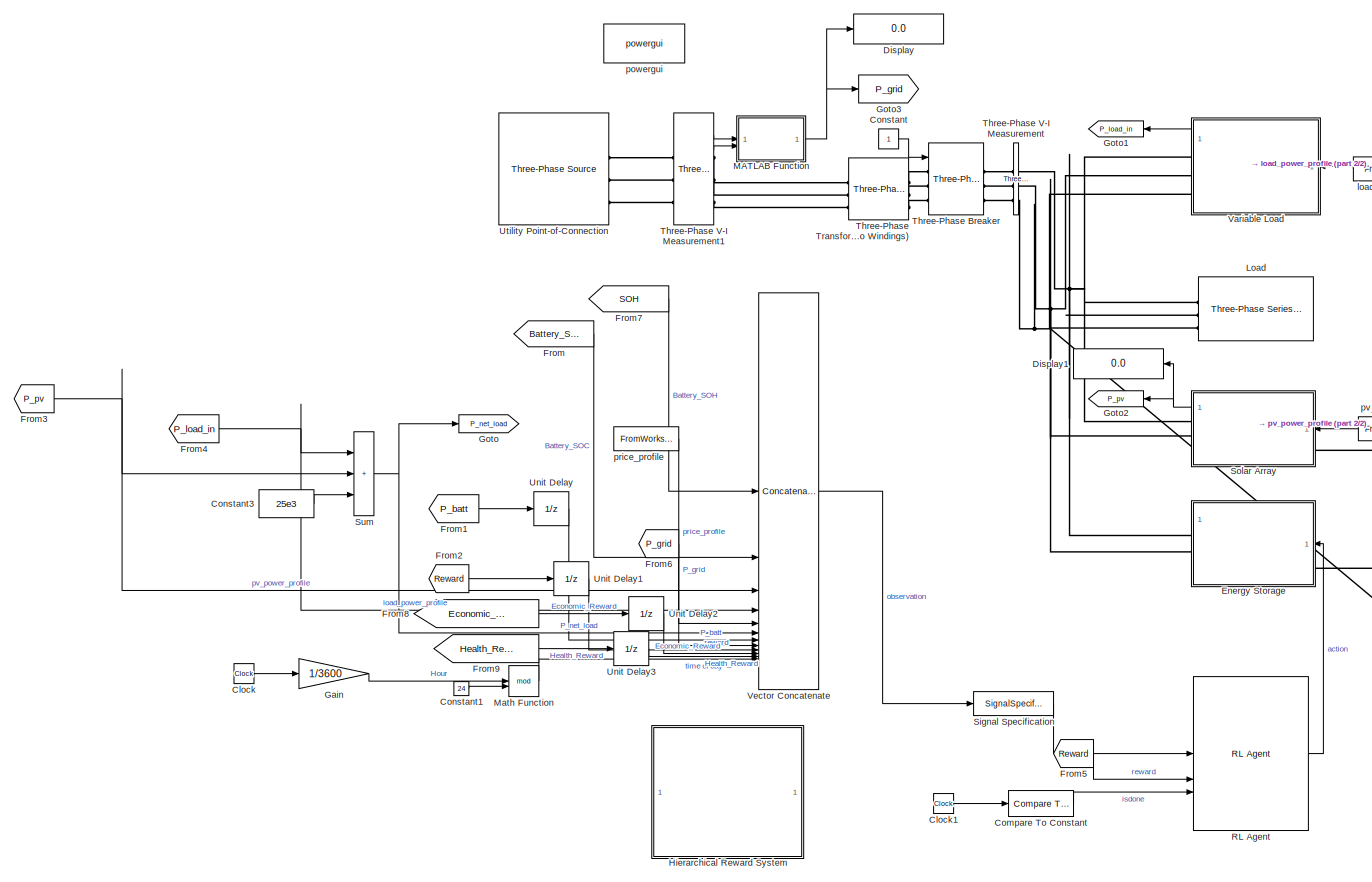
[diagram: root canvas - part 1/2, most of the canvas]
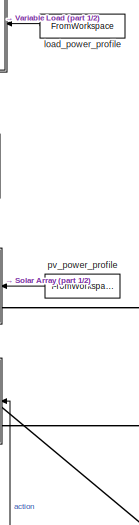
[diagram: root canvas - part 2/2, middle right region]
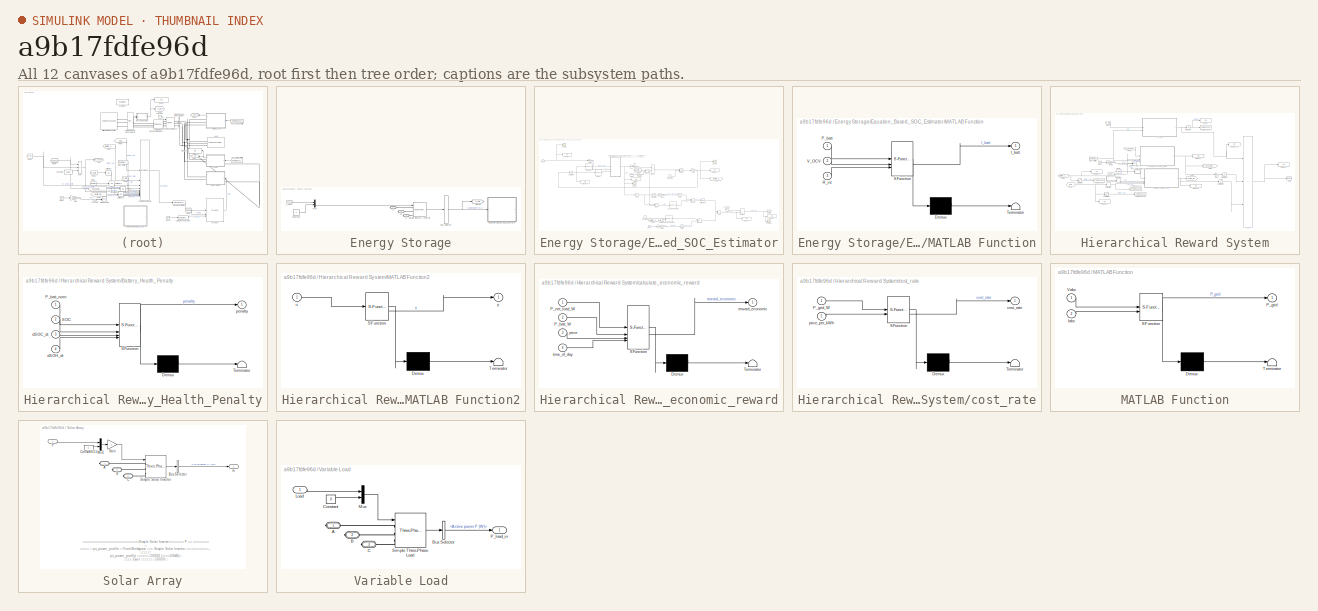
[diagram: thumbnail index - all 12 canvases of the model, root first then tree order]
MODEL slx_a9b17fdfe96d
KIND model
CONFIG AbsTol = 1e-6
CONFIG EnableMultiTasking = off
CONFIG FixedStep = 3600
CONFIG MaxStep = 900
CONFIG MinStep = 1e-4
CONFIG RelTol = 1e-4
CONFIG SampleTimeConstraint = Unconstrained
CONFIG SolverName = ode23tb
CONFIG StartFcn = fprintf('=== Starting Episode [%s] ===\n', datestr(now, 'HH:MM:SS'));
CONFIG StartTime = 0
CONFIG StopTime = 2592000
BLOCK [Clock] Clock
  DisplayTime = on
BLOCK [Clock] Clock1
BLOCK [Reference] Compare To Constant  REF=simulink/Logic and Bit
Operations/Compare
To Constant
  SourceBlock = simulink/Logic and Bit\nOperations/Compare\nTo Constant
  SourceType = Compare To Constant
BLOCK [Constant] Constant
BLOCK [Constant] Constant1
  Value = 24
BLOCK [Constant] Constant3
  Value = 25e3
BLOCK [Display] Display
  Decimation = 1
BLOCK [Display] Display1
  Decimation = 1
  NameLocation = top
BLOCK [SubSystem] Energy Storage
BLOCK [PMIOPort] Energy Storage/A
  Side = Right
BLOCK [PMIOPort] Energy Storage/B
  Port = 2
  Side = Right
BLOCK [BusSelector] Energy Storage/Bus Selector
  OutputSignals = Active power P (W)
BLOCK [PMIOPort] Energy Storage/C
  Port = 3
  Side = Right
BLOCK [Constant] Energy Storage/Constant
  Value = 0
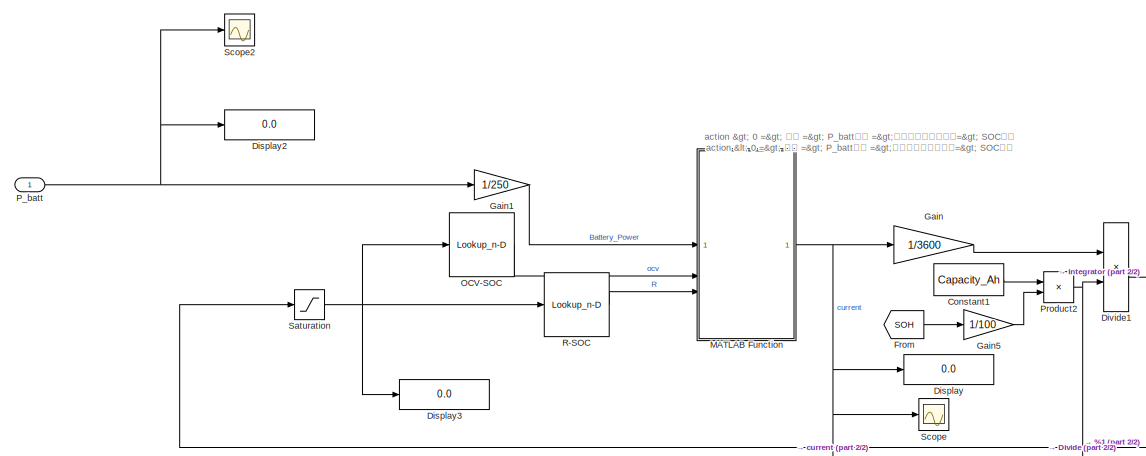
[diagram: Energy Storage/Equation_Based_SOC_Estimator - part 1/2, top left region]
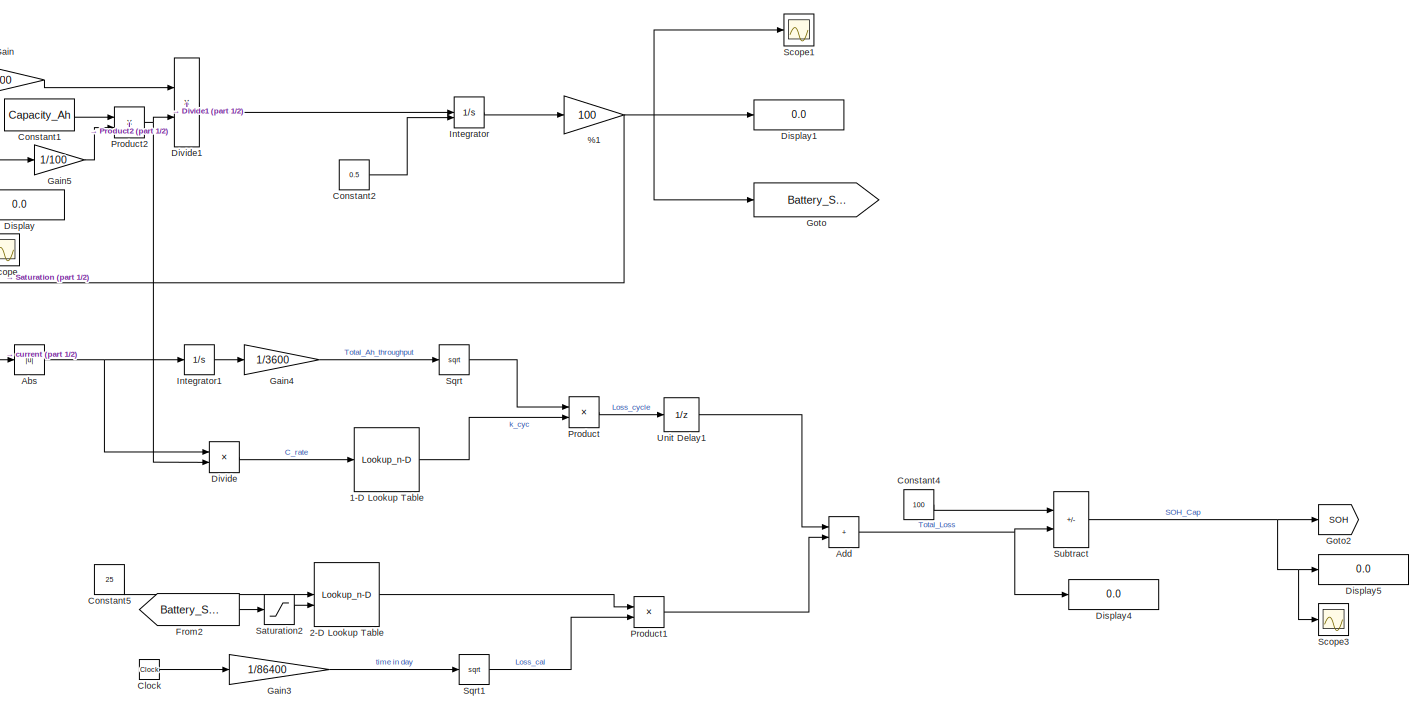
[diagram: Energy Storage/Equation_Based_SOC_Estimator - part 2/2, right side, full height]
BLOCK [SubSystem] Energy Storage/Equation_Based_SOC_Estimator
BLOCK [Gain] Energy Storage/Equation_Based_SOC_Estimator/%1
  Gain = 100
BLOCK [Lookup_n-D] Energy Storage/Equation_Based_SOC_Estimator/1-D Lookup Table
  BreakpointsForDimension1 = [0.25;0.5;0.75;1]
  InputPortMap = u0
  InternalRulePriority = Speed
  NumberOfTableDimensions = 1
  RndMeth = Simplest
  Table = [0.014;0.0154;0.0175;0.0195]
BLOCK [Lookup_n-D] Energy Storage/Equation_Based_SOC_Estimator/2-D Lookup Table
  BreakpointsForDimension1 = [25 35 45]
  BreakpointsForDimension2 = [20;50;80;100]
  InputPortMap = u0,u1
  InternalRulePriority = Speed
  RndMeth = Simplest
  Table = [0.182 0.214 0.199 0.235;0.257 0.303 0.282 0.332;0.365 0.43 0.4 0.471]
BLOCK [Abs] Energy Storage/Equation_Based_SOC_Estimator/Abs
  SaturateOnIntegerOverflow = off
  ZeroCross = off
BLOCK [Sum] Energy Storage/Equation_Based_SOC_Estimator/Add
  IconShape = rectangular
BLOCK [Clock] Energy Storage/Equation_Based_SOC_Estimator/Clock
BLOCK [Constant] Energy Storage/Equation_Based_SOC_Estimator/Constant1
  Value = Capacity_Ah
BLOCK [Constant] Energy Storage/Equation_Based_SOC_Estimator/Constant2
  Value = 0.5
BLOCK [Constant] Energy Storage/Equation_Based_SOC_Estimator/Constant4
  Value = 100
BLOCK [Constant] Energy Storage/Equation_Based_SOC_Estimator/Constant5
  Value = 25
BLOCK [Display] Energy Storage/Equation_Based_SOC_Estimator/Display
  Decimation = 1
BLOCK [Display] Energy Storage/Equation_Based_SOC_Estimator/Display1
  Decimation = 1
BLOCK [Display] Energy Storage/Equation_Based_SOC_Estimator/Display2
  Decimation = 1
BLOCK [Display] Energy Storage/Equation_Based_SOC_Estimator/Display3
  Decimation = 1
BLOCK [Display] Energy Storage/Equation_Based_SOC_Estimator/Display4
  Decimation = 1
BLOCK [Display] Energy Storage/Equation_Based_SOC_Estimator/Display5
  Decimation = 1
BLOCK [Product] Energy Storage/Equation_Based_SOC_Estimator/Divide
  Inputs = */
BLOCK [Product] Energy Storage/Equation_Based_SOC_Estimator/Divide1
  Inputs = */
BLOCK [From] Energy Storage/Equation_Based_SOC_Estimator/From
  GotoTag = SOH
  TagVisibility = global
BLOCK [From] Energy Storage/Equation_Based_SOC_Estimator/From2
  GotoTag = Battery_SOC
  TagVisibility = global
BLOCK [Gain] Energy Storage/Equation_Based_SOC_Estimator/Gain
  Gain = 1/3600
BLOCK [Gain] Energy Storage/Equation_Based_SOC_Estimator/Gain1
  Gain = 1/250
BLOCK [Gain] Energy Storage/Equation_Based_SOC_Estimator/Gain3
  Gain = 1/86400
BLOCK [Gain] Energy Storage/Equation_Based_SOC_Estimator/Gain4
  Gain = 1/3600
BLOCK [Gain] Energy Storage/Equation_Based_SOC_Estimator/Gain5
  Gain = 1/100
BLOCK [Goto] Energy Storage/Equation_Based_SOC_Estimator/Goto
  GotoTag = Battery_SOC
  TagVisibility = global
BLOCK [Goto] Energy Storage/Equation_Based_SOC_Estimator/Goto2
  GotoTag = SOH
  TagVisibility = global
BLOCK [Integrator] Energy Storage/Equation_Based_SOC_Estimator/Integrator
  InitialConditionSource = external
  ZeroCross = off
BLOCK [Integrator] Energy Storage/Equation_Based_SOC_Estimator/Integrator1
BLOCK [SubSystem] Energy Storage/Equation_Based_SOC_Estimator/MATLAB Function
  ErrorFcn = Stateflow.Translate.translate
  PermitHierarchicalResolution = ExplicitOnly
  SFBlockType = MATLAB Function
  TreatAsAtomicUnit = on
BLOCK [Demux] Energy Storage/Equation_Based_SOC_Estimator/MATLAB Function/ Demux 
  Outputs = 1
BLOCK [S-Function] Energy Storage/Equation_Based_SOC_Estimator/MATLAB Function/ SFunction 
  EnableBusSupport = off
  FunctionName = sf_sfun
  PortCounts = [3 2]
  SFcnIsStateOwnerBlock = off
  SFunctionDeploymentMode = off
  Tag = Stateflow S-Function 2
BLOCK [Terminator] Energy Storage/Equation_Based_SOC_Estimator/MATLAB Function/ Terminator 
BLOCK [Outport] Energy Storage/Equation_Based_SOC_Estimator/MATLAB Function/I_batt
BLOCK [Inport] Energy Storage/Equation_Based_SOC_Estimator/MATLAB Function/P_batt
BLOCK [Inport] Energy Storage/Equation_Based_SOC_Estimator/MATLAB Function/R_int
  Port = 3
BLOCK [Inport] Energy Storage/Equation_Based_SOC_Estimator/MATLAB Function/V_OCV
  Port = 2
BLOCK [Lookup_n-D] Energy Storage/Equation_Based_SOC_Estimator/OCV-SOC
  BreakpointsForDimension1 = [0;1;5;10;20;30;40;50;60;70;80;90;95;99;100]
  InputPortMap = u0
  InternalRulePriority = Speed
  NumberOfTableDimensions = 1
  RndMeth = Simplest
  Table = [2.5;2.73;2.9;3;3.2;3.22;3.25;3.26;3.27;3.3;3.32;3.35;3.4;3.5;3.65]
BLOCK [Inport] Energy Storage/Equation_Based_SOC_Estimator/P_batt
BLOCK [Product] Energy Storage/Equation_Based_SOC_Estimator/Product
BLOCK [Product] Energy Storage/Equation_Based_SOC_Estimator/Product1
BLOCK [Product] Energy Storage/Equation_Based_SOC_Estimator/Product2
BLOCK [Lookup_n-D] Energy Storage/Equation_Based_SOC_Estimator/R-SOC
  BreakpointsForDimension1 = [0;1;5;10;20;30;40;50;60;70;80;90;95;99;100]
  InputPortMap = u0
  InternalRulePriority = Speed
  NumberOfTableDimensions = 1
  RndMeth = Simplest
  Table = [0.0005999999999999999;0.0005;0.00045;0.0004;0.00035;0.00025;0.0002;0.00018;0.00018;0.00019;0.0002;0.00022;0.00025;0.00035;0.0004]
BLOCK [Saturate] Energy Storage/Equation_Based_SOC_Estimator/Saturation
  LinearizeAsGain = off
  LowerLimit = 0
  UpperLimit = 100
  ZeroCross = off
BLOCK [Saturate] Energy Storage/Equation_Based_SOC_Estimator/Saturation2
  LinearizeAsGain = off
  LowerLimit = 10
  UpperLimit = 90
  ZeroCross = off
BLOCK [Scope] Energy Storage/Equation_Based_SOC_Estimator/Scope
  ActiveDisplayYMaximum = -8.6266897894405368
  ActiveDisplayYMinimum = -8.6273114509056246
  Floating = off
  GraphicalSettings = {"Style":{"BackgroundColor":[0.12941176470588237,0.12941176470588237,0.12941176470588237],"AxesColor":[0.07058823529411765,0.07058823529411765,0.07058823529411765],"LabelsColor":[0.8509803921568627,0.8509803921568627,0.8509803921568627],"PreserveColors":false,"Visible":[true],"LineStyle":["-"],"LineWidth":[1.5],"BarWidth":[0.9],"LineColor":["auto"],"LineFaceAlpha":[1],"LineEdgeAlpha":[1],"Marker":...<+1988ch>
  MultipleDisplayCache = [{"MaxYLimMag":7.9861537568661269,"MaxYLimReal":-8.6266897894405368,"MinYLimMag":0,"MinYLimReal":-8.6273114509056246,"PlotAsMagnitudePhase":false,"ShowGrid":true,"ShowLegend":false,"Title":"%<SignalLabel>","YLabel":""}]
  NumInputPorts = 1
  ScopeFrameLocation = window
  WasSavedAsWebScope = on
  WindowPosition = [986.000000,239.000000,560.000000,420.000000,]
BLOCK [Scope] Energy Storage/Equation_Based_SOC_Estimator/Scope1
  ActiveDisplayYMaximum = 10.070739706123071
  ActiveDisplayYMinimum = -95.333923381392538
  DataLoggingVariableName = ScopeData1
  Floating = off
  GraphicalSettings = {"AxesScalingProperties":{"AlignXAxis":"Center","AlignYAxis":"Center","AutoScaleXAxisLimits":false,"AxesScaling":"Manual","AxesScalingNumUpdates":10,"ExpandOnly":true,"ScaleAxesLimitsAtStop":false,"XAxisDataRange":100,"YAxisDataRange":80},"DisplayProperties":{"ColorOrder":["auto","auto","auto","auto","auto","auto","auto","auto","auto","auto","auto","auto","auto","auto","auto","auto","auto","auto",...<+2030ch>
  MultipleDisplayCache = [{"MaxYLimMag":50.021955449662983,"MaxYLimReal":10.070739706123071,"MinYLimMag":49.996775948133546,"MinYLimReal":-95.333923381392538,"PlotAsMagnitudePhase":false,"ShowGrid":true,"ShowLegend":false,"Title":"%<SignalLabel>","YLabel":""}]
  NumInputPorts = 1
  ScopeFrameLocation = window
  WasSavedAsWebScope = on
  WindowPosition = [720.000000,467.000000,560.000000,420.000000,]
BLOCK [Scope] Energy Storage/Equation_Based_SOC_Estimator/Scope2
  ActiveDisplayYMaximum = 6.9611718500213281E+11
  ActiveDisplayYMinimum = -5.062023616628875E+12
  DataLoggingVariableName = ScopeData2
  Floating = off
  GraphicalSettings = {"Style":{"BackgroundColor":[0.12941176470588237,0.12941176470588237,0.12941176470588237],"AxesColor":[0.07058823529411765,0.07058823529411765,0.07058823529411765],"LabelsColor":[0.8509803921568627,0.8509803921568627,0.8509803921568627],"PreserveColors":false,"Visible":[true],"LineStyle":["-"],"LineWidth":[1.5],"BarWidth":[0.9],"LineColor":["auto"],"LineFaceAlpha":[1],"LineEdgeAlpha":[1],"Marker":...<+1959ch>
  MultipleDisplayCache = [{"MaxYLimMag":3125,"MaxYLimReal":6.9611718500213281E+11,"MinYLimMag":0,"MinYLimReal":-5.062023616628875E+12,"PlotAsMagnitudePhase":false,"ShowGrid":true,"ShowLegend":false,"Title":"%<SignalLabel>","YLabel":""}]
  NumInputPorts = 1
  ScopeFrameLocation = window
  WasSavedAsWebScope = on
  WindowPosition = [709.000000,390.000000,560.000000,420.000000,]
BLOCK [Scope] Energy Storage/Equation_Based_SOC_Estimator/Scope3
  ActiveDisplayYMaximum = 97.597527072468992
  ActiveDisplayYMinimum = 97.583054850327912
  DataLoggingVariableName = ScopeData3
  Floating = off
  GraphicalSettings = {"AxesScalingProperties":{"AlignXAxis":"Center","AlignYAxis":"Center","AutoScaleXAxisLimits":false,"AxesScaling":"Manual","AxesScalingNumUpdates":10,"ExpandOnly":true,"ScaleAxesLimitsAtStop":false,"XAxisDataRange":100,"YAxisDataRange":80},"DisplayProperties":{"ColorOrder":["auto","auto","auto","auto","auto","auto","auto","auto","auto","auto","auto","auto","auto","auto","auto","auto","auto","auto",...<+2025ch>
  MultipleDisplayCache = [{"MaxYLimMag":100.19726421608972,"MaxYLimReal":97.597527072468992,"MinYLimMag":98.22462205519254,"MinYLimReal":97.583054850327912,"PlotAsMagnitudePhase":false,"ShowGrid":true,"ShowLegend":false,"Title":"%<SignalLabel>","YLabel":""}]
  NumInputPorts = 1
  ScopeFrameLocation = window
  WasSavedAsWebScope = on
  WindowPosition = [744.000000,366.000000,560.000000,420.000000,]
BLOCK [Sqrt] Energy Storage/Equation_Based_SOC_Estimator/Sqrt
BLOCK [Sqrt] Energy Storage/Equation_Based_SOC_Estimator/Sqrt1
BLOCK [Sum] Energy Storage/Equation_Based_SOC_Estimator/Subtract
  IconShape = rectangular
  Inputs = +-
BLOCK [UnitDelay] Energy Storage/Equation_Based_SOC_Estimator/Unit Delay1
  HasFrameUpgradeWarning = on
  SampleTime = -1
BLOCK [Goto] Energy Storage/Goto1
  GotoTag = P_batt
  TagVisibility = global
BLOCK [Mux] Energy Storage/Mux
  DisplayOption = bar
  Inputs = 2
BLOCK [Inport] Energy Storage/P_agent
BLOCK [Reference] Energy Storage/Simple Battery Inverter  REF=spsThreePhaseDynamicLoadLib/Three-Phase
Dynamic Load
  LibrarySourceBlock = sps_lib/Passives/Three-Phase\nDynamic Load
  SourceBlock = spsThreePhaseDynamicLoadLib/Three-Phase\nDynamic Load
  SourceType = Three-Phase Dynamic Load
BLOCK [From] From
  GotoTag = Battery_SOC
  TagVisibility = global
BLOCK [From] From1
  GotoTag = P_batt
  TagVisibility = global
BLOCK [From] From2
  GotoTag = Reward
  TagVisibility = global
BLOCK [From] From3
  GotoTag = P_pv
  TagVisibility = global
BLOCK [From] From4
  GotoTag = P_load_in
  TagVisibility = global
BLOCK [From] From5
  GotoTag = Reward
  TagVisibility = global
BLOCK [From] From6
  GotoTag = P_grid
  TagVisibility = global
BLOCK [From] From7
  GotoTag = SOH
  TagVisibility = global
BLOCK [From] From8
  GotoTag = Economic_Reward
  TagVisibility = global
BLOCK [From] From9
  GotoTag = Health_Reward
  TagVisibility = global
BLOCK [Gain] Gain
  Gain = 1/3600
BLOCK [Goto] Goto
  GotoTag = P_net_load
  TagVisibility = global
BLOCK [Goto] Goto1
  GotoTag = P_load_in
  TagVisibility = global
BLOCK [Goto] Goto2
  GotoTag = P_pv
  TagVisibility = global
BLOCK [Goto] Goto3
  GotoTag = P_grid
  TagVisibility = global
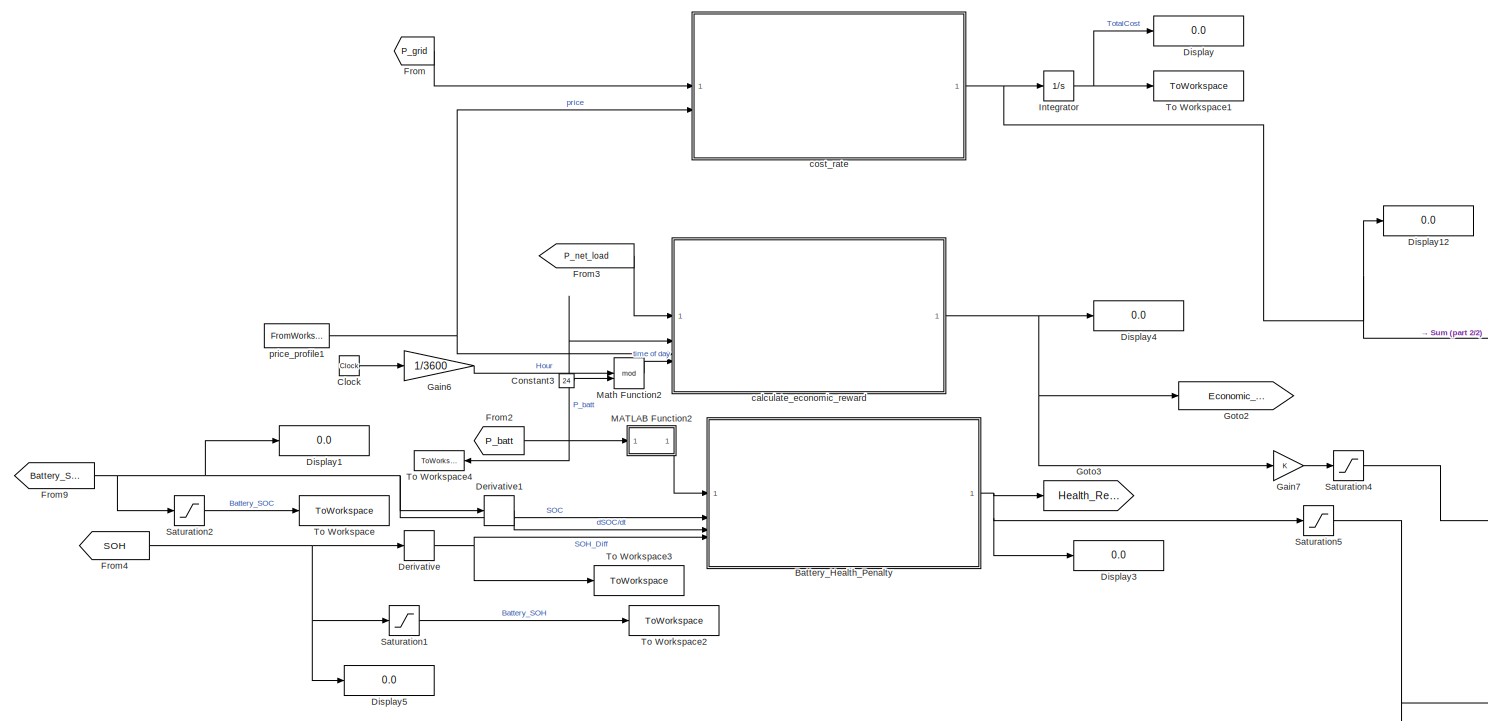
[diagram: Hierarchical Reward System - part 1/2, most of the canvas]
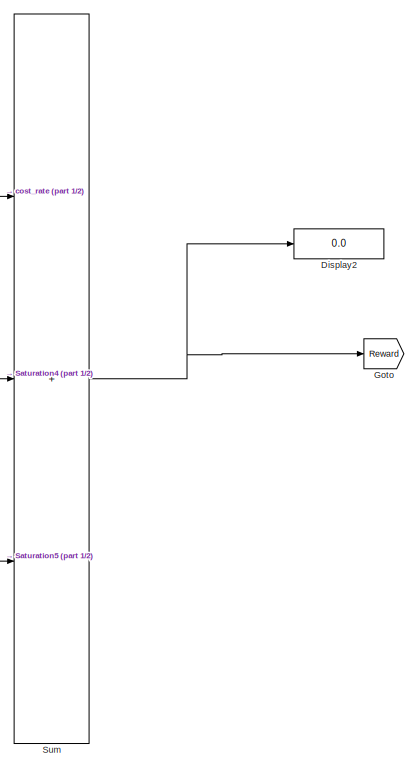
[diagram: Hierarchical Reward System - part 2/2, right side, full height]
BLOCK [SubSystem] Hierarchical Reward System
BLOCK [SubSystem] Hierarchical Reward System/Battery_Health_Penalty
  ErrorFcn = Stateflow.Translate.translate
  PermitHierarchicalResolution = ExplicitOnly
  SFBlockType = MATLAB Function
  TreatAsAtomicUnit = on
BLOCK [Demux] Hierarchical Reward System/Battery_Health_Penalty/ Demux 
  Outputs = 1
BLOCK [S-Function] Hierarchical Reward System/Battery_Health_Penalty/ SFunction 
  EnableBusSupport = off
  FunctionName = sf_sfun
  PortCounts = [4 2]
  SFcnIsStateOwnerBlock = off
  SFunctionDeploymentMode = off
  Tag = Stateflow S-Function 6
BLOCK [Terminator] Hierarchical Reward System/Battery_Health_Penalty/ Terminator 
BLOCK [Inport] Hierarchical Reward System/Battery_Health_Penalty/P_batt_norm
BLOCK [Inport] Hierarchical Reward System/Battery_Health_Penalty/SOC
  Port = 2
BLOCK [Inport] Hierarchical Reward System/Battery_Health_Penalty/dSOC_dt
  Port = 3
BLOCK [Inport] Hierarchical Reward System/Battery_Health_Penalty/dSOH_dt
  Port = 4
BLOCK [Outport] Hierarchical Reward System/Battery_Health_Penalty/penalty
BLOCK [Clock] Hierarchical Reward System/Clock
  DisplayTime = on
BLOCK [Constant] Hierarchical Reward System/Constant3
  Value = 24
BLOCK [Derivative] Hierarchical Reward System/Derivative
BLOCK [Derivative] Hierarchical Reward System/Derivative1
BLOCK [Display] Hierarchical Reward System/Display
  Decimation = 1
BLOCK [Display] Hierarchical Reward System/Display1
  Decimation = 1
BLOCK [Display] Hierarchical Reward System/Display12
  Decimation = 1
BLOCK [Display] Hierarchical Reward System/Display2
  Decimation = 1
BLOCK [Display] Hierarchical Reward System/Display3
  Decimation = 1
BLOCK [Display] Hierarchical Reward System/Display4
  Decimation = 1
BLOCK [Display] Hierarchical Reward System/Display5
  Decimation = 1
BLOCK [From] Hierarchical Reward System/From
  GotoTag = P_grid
  TagVisibility = global
BLOCK [From] Hierarchical Reward System/From2
  GotoTag = P_batt
  TagVisibility = global
BLOCK [From] Hierarchical Reward System/From3
  GotoTag = P_net_load
  TagVisibility = global
BLOCK [From] Hierarchical Reward System/From4
  GotoTag = SOH
  TagVisibility = global
BLOCK [From] Hierarchical Reward System/From9
  GotoTag = Battery_SOC
  TagVisibility = global
BLOCK [Gain] Hierarchical Reward System/Gain6
  Gain = 1/3600
BLOCK [Gain] Hierarchical Reward System/Gain7
BLOCK [Goto] Hierarchical Reward System/Goto
  GotoTag = Reward
  TagVisibility = global
BLOCK [Goto] Hierarchical Reward System/Goto2
  GotoTag = Economic_Reward
  TagVisibility = global
BLOCK [Goto] Hierarchical Reward System/Goto3
  GotoTag = Health_Reward
  TagVisibility = global
BLOCK [Integrator] Hierarchical Reward System/Integrator
  ZeroCross = off
BLOCK [SubSystem] Hierarchical Reward System/MATLAB Function2
  ErrorFcn = Stateflow.Translate.translate
  PermitHierarchicalResolution = ExplicitOnly
  SFBlockType = MATLAB Function
  TreatAsAtomicUnit = on
BLOCK [Demux] Hierarchical Reward System/MATLAB Function2/ Demux 
  Outputs = 1
BLOCK [S-Function] Hierarchical Reward System/MATLAB Function2/ SFunction 
  EnableBusSupport = off
  FunctionName = sf_sfun
  PortCounts = [1 2]
  SFcnIsStateOwnerBlock = off
  SFunctionDeploymentMode = off
  Tag = Stateflow S-Function 8
BLOCK [Terminator] Hierarchical Reward System/MATLAB Function2/ Terminator 
BLOCK [Inport] Hierarchical Reward System/MATLAB Function2/u
BLOCK [Outport] Hierarchical Reward System/MATLAB Function2/y
BLOCK [Math] Hierarchical Reward System/Math Function2
  Operator = mod
BLOCK [Saturate] Hierarchical Reward System/Saturation1
  LinearizeAsGain = off
  LowerLimit = 0
  OutMin = 0
  RndMeth = Simplest
  UpperLimit = 100
  ZeroCross = off
BLOCK [Saturate] Hierarchical Reward System/Saturation2
  LinearizeAsGain = off
  LowerLimit = 0
  OutMin = 0
  RndMeth = Simplest
  UpperLimit = 100
  ZeroCross = off
BLOCK [Saturate] Hierarchical Reward System/Saturation4
  LinearizeAsGain = off
  LowerLimit = -100
  RndMeth = Simplest
  UpperLimit = 200
  ZeroCross = off
BLOCK [Saturate] Hierarchical Reward System/Saturation5
  LinearizeAsGain = off
  LowerLimit = -1000
  RndMeth = Simplest
  UpperLimit = 1000
  ZeroCross = off
BLOCK [Sum] Hierarchical Reward System/Sum
  IconShape = rectangular
  Inputs = +++
BLOCK [ToWorkspace] Hierarchical Reward System/To Workspace
  FixptAsFi = on
  MaxDataPoints = inf
  SampleTime = 3600
  Save2DSignal = 2-D array (concatenate along first dimension)
  VariableName = Battery_SOC
BLOCK [ToWorkspace] Hierarchical Reward System/To Workspace1
  Decimation = 3600
  FixptAsFi = on
  MaxDataPoints = inf
  SampleTime = -1
  SaveFormat = Timeseries
  VariableName = TotalCost
BLOCK [ToWorkspace] Hierarchical Reward System/To Workspace2
  FixptAsFi = on
  MaxDataPoints = inf
  SampleTime = 3600
  Save2DSignal = 2-D array (concatenate along first dimension)
  VariableName = Battery_SOH
BLOCK [ToWorkspace] Hierarchical Reward System/To Workspace3
  FixptAsFi = on
  MaxDataPoints = inf
  SampleTime = 3600
  Save2DSignal = 2-D array (concatenate along first dimension)
  VariableName = SOH_Diff
BLOCK [ToWorkspace] Hierarchical Reward System/To Workspace4
  FixptAsFi = on
  MaxDataPoints = inf
  NameLocation = top
  SampleTime = 3600
  Save2DSignal = 2-D array (concatenate along first dimension)
  VariableName = P_batt
BLOCK [SubSystem] Hierarchical Reward System/calculate_economic_reward
  ErrorFcn = Stateflow.Translate.translate
  PermitHierarchicalResolution = ExplicitOnly
  SFBlockType = MATLAB Function
  TreatAsAtomicUnit = on
BLOCK [Demux] Hierarchical Reward System/calculate_economic_reward/ Demux 
  Outputs = 1
BLOCK [S-Function] Hierarchical Reward System/calculate_economic_reward/ SFunction 
  EnableBusSupport = off
  FunctionName = sf_sfun
  PortCounts = [4 2]
  SFcnIsStateOwnerBlock = off
  SFunctionDeploymentMode = off
  Tag = Stateflow S-Function 5
BLOCK [Terminator] Hierarchical Reward System/calculate_economic_reward/ Terminator 
BLOCK [Inport] Hierarchical Reward System/calculate_economic_reward/P_batt_W
  Port = 2
BLOCK [Inport] Hierarchical Reward System/calculate_economic_reward/P_net_load_W
BLOCK [Inport] Hierarchical Reward System/calculate_economic_reward/price
  Port = 3
BLOCK [Outport] Hierarchical Reward System/calculate_economic_reward/reward_economic
BLOCK [Inport] Hierarchical Reward System/calculate_economic_reward/time_of_day
  Port = 4
BLOCK [SubSystem] Hierarchical Reward System/cost_rate
  ErrorFcn = Stateflow.Translate.translate
  PermitHierarchicalResolution = ExplicitOnly
  SFBlockType = MATLAB Function
  TreatAsAtomicUnit = on
BLOCK [Demux] Hierarchical Reward System/cost_rate/ Demux 
  Outputs = 1
BLOCK [S-Function] Hierarchical Reward System/cost_rate/ SFunction 
  EnableBusSupport = off
  FunctionName = sf_sfun
  PortCounts = [2 2]
  SFcnIsStateOwnerBlock = off
  SFunctionDeploymentMode = off
  Tag = Stateflow S-Function 1
BLOCK [Terminator] Hierarchical Reward System/cost_rate/ Terminator 
BLOCK [Inport] Hierarchical Reward System/cost_rate/P_grid_W
BLOCK [Outport] Hierarchical Reward System/cost_rate/cost_rate
BLOCK [Inport] Hierarchical Reward System/cost_rate/price_per_kWh
  Port = 2
BLOCK [FromWorkspace] Hierarchical Reward System/price_profile1
  VariableName = price_profile
BLOCK [Reference] Load  REF=spsThreePhaseSeriesRLCLoadLib/Three-Phase
Series RLC Load
  AttributesFormatString = P = %<ActivePower> W
  LibrarySourceBlock = sps_lib/Passives/Three-Phase\nSeries RLC Load
  SourceBlock = spsThreePhaseSeriesRLCLoadLib/Three-Phase\nSeries RLC Load
  SourceType = Three-Phase Series RLC Load
BLOCK [SubSystem] MATLAB Function
  ErrorFcn = Stateflow.Translate.translate
  PermitHierarchicalResolution = ExplicitOnly
  SFBlockType = MATLAB Function
  TreatAsAtomicUnit = on
BLOCK [Demux] MATLAB Function/ Demux 
  Outputs = 1
BLOCK [S-Function] MATLAB Function/ SFunction 
  EnableBusSupport = off
  FunctionName = sf_sfun
  PortCounts = [2 2]
  SFcnIsStateOwnerBlock = off
  SFunctionDeploymentMode = off
  Tag = Stateflow S-Function 3
BLOCK [Terminator] MATLAB Function/ Terminator 
BLOCK [Inport] MATLAB Function/Iabc
  Port = 2
BLOCK [Outport] MATLAB Function/P_grid
BLOCK [Inport] MATLAB Function/Vabc
BLOCK [Math] Math Function
  Operator = mod
BLOCK [Reference] RL Agent  REF=rllib/RL Agent
  SourceBlock = rllib/RL Agent
  SourceType = RL Agent
BLOCK [SignalSpecification] Signal Specification
  Dimensions = 12
  SampleTime = 3600
BLOCK [SubSystem] Solar Array
BLOCK [PMIOPort] Solar Array/A
  Side = Right
BLOCK [PMIOPort] Solar Array/B
  Port = 2
  Side = Right
BLOCK [BusSelector] Solar Array/Bus Selector
  OutputSignals = Active power P (W)
BLOCK [PMIOPort] Solar Array/C
  Port = 3
  Side = Right
BLOCK [Constant] Solar Array/Constant11
  Value = 0
BLOCK [Gain] Solar Array/Gain
  Gain = -1
BLOCK [Mux] Solar Array/Mux1
  DisplayOption = bar
  Inputs = 2
BLOCK [Inport] Solar Array/P
  NameLocation = top
BLOCK [Reference] Solar Array/Simple Solar Inverter  REF=spsThreePhaseDynamicLoadLib/Three-Phase
Dynamic Load
  LibrarySourceBlock = sps_lib/Passives/Three-Phase\nDynamic Load
  SourceBlock = spsThreePhaseDynamicLoadLib/Three-Phase\nDynamic Load
  SourceType = Three-Phase Dynamic Load
BLOCK [Outport] Solar Array/m
  VectorParamsAs1DForOutWhenUnconnected = off
BLOCK [Sum] Sum
  IconShape = rectangular
  Inputs = +++
BLOCK [Reference] Three-Phase Breaker  REF=spsThreePhaseBreakerLib/Three-Phase Breaker
  LibrarySourceBlock = sps_lib/Power Grid Elements/Three-Phase Breaker
  SourceBlock = spsThreePhaseBreakerLib/Three-Phase Breaker
  SourceType = Three-Phase Breaker
BLOCK [Reference] Three-Phase Transformer (Two Windings)  REF=spsThreePhaseTransformerTwoWindingsLib/Three-Phase
Transformer
(Two Windings)
  LibrarySourceBlock = sps_lib/Power Grid Elements/Three-Phase\nTransformer\n(Two Windings)
  SourceBlock = spsThreePhaseTransformerTwoWindingsLib/Three-Phase\nTransformer\n(Two Windings)
  SourceType = Three-Phase Transformer (Two Windings)
BLOCK [Reference] Three-Phase V-I Measurement  REF=spsThreePhaseVIMeasurementLib/Three-Phase
V-I Measurement
  LibrarySourceBlock = sps_lib/Sensors and Measurements/Three-Phase\nV-I Measurement
  SourceBlock = spsThreePhaseVIMeasurementLib/Three-Phase\nV-I Measurement
  SourceType = Three-Phase VI Measurement
BLOCK [Reference] Three-Phase V-I Measurement1  REF=spsThreePhaseVIMeasurementLib/Three-Phase
V-I Measurement
  LibrarySourceBlock = sps_lib/Sensors and Measurements/Three-Phase\nV-I Measurement
  SourceBlock = spsThreePhaseVIMeasurementLib/Three-Phase\nV-I Measurement
  SourceType = Three-Phase VI Measurement
BLOCK [UnitDelay] Unit Delay
  HasFrameUpgradeWarning = on
  SampleTime = -1
BLOCK [UnitDelay] Unit Delay1
  HasFrameUpgradeWarning = on
  SampleTime = -1
BLOCK [UnitDelay] Unit Delay2
  HasFrameUpgradeWarning = on
  SampleTime = -1
BLOCK [UnitDelay] Unit Delay3
  HasFrameUpgradeWarning = on
  SampleTime = -1
BLOCK [Reference] Utility Point-of-Connection  REF=spsThreePhaseSourceLib/Three-Phase Source
  LibrarySourceBlock = sps_lib/Sources/Three-Phase Source
  SourceBlock = spsThreePhaseSourceLib/Three-Phase Source
  SourceType = Three-Phase Source
BLOCK [SubSystem] Variable Load
BLOCK [PMIOPort] Variable Load/A
  Side = Right
BLOCK [PMIOPort] Variable Load/B
  Port = 2
  Side = Right
BLOCK [BusSelector] Variable Load/Bus Selector
  OutputSignals = Active power P (W)
BLOCK [PMIOPort] Variable Load/C
  Port = 3
  Side = Right
BLOCK [Constant] Variable Load/Constant
  Value = 0
BLOCK [Inport] Variable Load/Load
  NameLocation = top
BLOCK [Mux] Variable Load/Mux
  DisplayOption = bar
  Inputs = 2
BLOCK [Outport] Variable Load/P_load_in
BLOCK [Reference] Variable Load/Simple Three-Phase Load  REF=spsThreePhaseDynamicLoadLib/Three-Phase
Dynamic Load
  LibrarySourceBlock = sps_lib/Passives/Three-Phase\nDynamic Load
  SourceBlock = spsThreePhaseDynamicLoadLib/Three-Phase\nDynamic Load
  SourceType = Three-Phase Dynamic Load
BLOCK [Concatenate] Vector Concatenate
  NumInputs = 12
BLOCK [FromWorkspace] load_power_profile
  NameLocation = top
  SampleTime = 3600
  VariableName = load_power_profile
BLOCK [Reference] powergui  REF=spspowerguiLib/powergui
  LibrarySourceBlock = sps_lib/powergui
  Priority = 1
  SourceBlock = spspowerguiLib/powergui
  SourceType = PSB option menu block
BLOCK [FromWorkspace] price_profile
  SampleTime = 3600
  VariableName = price_profile
BLOCK [FromWorkspace] pv_power_profile
  NameLocation = top
  SampleTime = 3600
  VariableName = pv_power_profile
ANNOTATION Energy Storage/Equation_Based_SOC_Estimator: action > 0 => 充电 => P_batt为正 =>电流为正，积分增加=> SOC上升 action < 0 => 放电 => P_batt为负 =>电流为负，积分减少=> SOC下降
ANNOTATION Solar Array: 光伏系统永远是 电源 ，它只能向电网 注入 功率。因此，其对应的Simple Solar Inverter模块的功率输入 P 必须 始终为负值或零 。 --- 连接方式 : 在 pv_power_profile 的 From Workspace 模块和 Simple Solar Inverter 模块的功率输入之间， 必须插入一个增益为 -1 的 Gain 模块 。 信号流逻辑: pv_power_profile 在某时刻输出 50000 (代表发电50kW)。 信号经过 Gain 模块后，变为 -50000。 Simple Solar Inverter 模块接收到 -50000。 模块正确地向电网 注入 50kW功率。 连接方式 : 在 pv_power_profile 的 From Workspace 模块和 Simple Solar Inverter 模块的功率输入之间， 必须插入一...<+19ch>
LINE Clock1:1 -> Compare To Constant:1
LINE Clock:1 -> Gain:1
LINE Compare To Constant:1 -> RL Agent:3
LINE Constant1:1 -> Math Function:2
LINE Constant3:1 -> Sum:3
LINE Constant:1 -> Three-Phase Breaker:1
NET Energy Storage/Bus Selector:1 -> Energy Storage/Equation_Based_SOC_Estimator:1, Energy Storage/Goto1:1
LINE Energy Storage/Constant:1 -> Energy Storage/Mux:2
NET Energy Storage/Equation_Based_SOC_Estimator/%1:1 -> Energy Storage/Equation_Based_SOC_Estimator/Display1:1, Energy Storage/Equation_Based_SOC_Estimator/Goto:1, Energy Storage/Equation_Based_SOC_Estimator/Saturation:1, Energy Storage/Equation_Based_SOC_Estimator/Scope1:1
LINE Energy Storage/Equation_Based_SOC_Estimator/1-D Lookup Table:1 -> Energy Storage/Equation_Based_SOC_Estimator/Product:2
LINE Energy Storage/Equation_Based_SOC_Estimator/2-D Lookup Table:1 -> Energy Storage/Equation_Based_SOC_Estimator/Product1:1
NET Energy Storage/Equation_Based_SOC_Estimator/Abs:1 -> Energy Storage/Equation_Based_SOC_Estimator/Divide:1, Energy Storage/Equation_Based_SOC_Estimator/Integrator1:1
NET Energy Storage/Equation_Based_SOC_Estimator/Add:1 -> Energy Storage/Equation_Based_SOC_Estimator/Display4:1, Energy Storage/Equation_Based_SOC_Estimator/Subtract:2
LINE Energy Storage/Equation_Based_SOC_Estimator/Clock:1 -> Energy Storage/Equation_Based_SOC_Estimator/Gain3:1
LINE Energy Storage/Equation_Based_SOC_Estimator/Constant1:1 -> Energy Storage/Equation_Based_SOC_Estimator/Product2:1
LINE Energy Storage/Equation_Based_SOC_Estimator/Constant2:1 -> Energy Storage/Equation_Based_SOC_Estimator/Integrator:2
LINE Energy Storage/Equation_Based_SOC_Estimator/Constant4:1 -> Energy Storage/Equation_Based_SOC_Estimator/Subtract:1
LINE Energy Storage/Equation_Based_SOC_Estimator/Constant5:1 -> Energy Storage/Equation_Based_SOC_Estimator/2-D Lookup Table:1
LINE Energy Storage/Equation_Based_SOC_Estimator/Divide1:1 -> Energy Storage/Equation_Based_SOC_Estimator/Integrator:1
LINE Energy Storage/Equation_Based_SOC_Estimator/Divide:1 -> Energy Storage/Equation_Based_SOC_Estimator/1-D Lookup Table:1
LINE Energy Storage/Equation_Based_SOC_Estimator/From2:1 -> Energy Storage/Equation_Based_SOC_Estimator/Saturation2:1
LINE Energy Storage/Equation_Based_SOC_Estimator/From:1 -> Energy Storage/Equation_Based_SOC_Estimator/Gain5:1
LINE Energy Storage/Equation_Based_SOC_Estimator/Gain1:1 -> Energy Storage/Equation_Based_SOC_Estimator/MATLAB Function:1
LINE Energy Storage/Equation_Based_SOC_Estimator/Gain3:1 -> Energy Storage/Equation_Based_SOC_Estimator/Sqrt1:1
LINE Energy Storage/Equation_Based_SOC_Estimator/Gain4:1 -> Energy Storage/Equation_Based_SOC_Estimator/Sqrt:1
LINE Energy Storage/Equation_Based_SOC_Estimator/Gain5:1 -> Energy Storage/Equation_Based_SOC_Estimator/Product2:2
LINE Energy Storage/Equation_Based_SOC_Estimator/Gain:1 -> Energy Storage/Equation_Based_SOC_Estimator/Divide1:1
LINE Energy Storage/Equation_Based_SOC_Estimator/Integrator1:1 -> Energy Storage/Equation_Based_SOC_Estimator/Gain4:1
LINE Energy Storage/Equation_Based_SOC_Estimator/Integrator:1 -> Energy Storage/Equation_Based_SOC_Estimator/%1:1
NET Energy Storage/Equation_Based_SOC_Estimator/MATLAB Function:1 -> Energy Storage/Equation_Based_SOC_Estimator/Abs:1, Energy Storage/Equation_Based_SOC_Estimator/Display:1, Energy Storage/Equation_Based_SOC_Estimator/Gain:1, Energy Storage/Equation_Based_SOC_Estimator/Scope:1
LINE Energy Storage/Equation_Based_SOC_Estimator/OCV-SOC:1 -> Energy Storage/Equation_Based_SOC_Estimator/MATLAB Function:2
NET Energy Storage/Equation_Based_SOC_Estimator/P_batt:1 -> Energy Storage/Equation_Based_SOC_Estimator/Display2:1, Energy Storage/Equation_Based_SOC_Estimator/Gain1:1, Energy Storage/Equation_Based_SOC_Estimator/Scope2:1
LINE Energy Storage/Equation_Based_SOC_Estimator/Product1:1 -> Energy Storage/Equation_Based_SOC_Estimator/Add:2
NET Energy Storage/Equation_Based_SOC_Estimator/Product2:1 -> Energy Storage/Equation_Based_SOC_Estimator/Divide1:2, Energy Storage/Equation_Based_SOC_Estimator/Divide:2
LINE Energy Storage/Equation_Based_SOC_Estimator/Product:1 -> Energy Storage/Equation_Based_SOC_Estimator/Unit Delay1:1
LINE Energy Storage/Equation_Based_SOC_Estimator/R-SOC:1 -> Energy Storage/Equation_Based_SOC_Estimator/MATLAB Function:3
LINE Energy Storage/Equation_Based_SOC_Estimator/Saturation2:1 -> Energy Storage/Equation_Based_SOC_Estimator/2-D Lookup Table:2
NET Energy Storage/Equation_Based_SOC_Estimator/Saturation:1 -> Energy Storage/Equation_Based_SOC_Estimator/Display3:1, Energy Storage/Equation_Based_SOC_Estimator/OCV-SOC:1, Energy Storage/Equation_Based_SOC_Estimator/R-SOC:1
LINE Energy Storage/Equation_Based_SOC_Estimator/Sqrt1:1 -> Energy Storage/Equation_Based_SOC_Estimator/Product1:2
LINE Energy Storage/Equation_Based_SOC_Estimator/Sqrt:1 -> Energy Storage/Equation_Based_SOC_Estimator/Product:1
NET Energy Storage/Equation_Based_SOC_Estimator/Subtract:1 -> Energy Storage/Equation_Based_SOC_Estimator/Display5:1, Energy Storage/Equation_Based_SOC_Estimator/Goto2:1, Energy Storage/Equation_Based_SOC_Estimator/Scope3:1
LINE Energy Storage/Equation_Based_SOC_Estimator/Unit Delay1:1 -> Energy Storage/Equation_Based_SOC_Estimator/Add:1
LINE Energy Storage/Mux:1 -> Energy Storage/Simple Battery Inverter:1
LINE Energy Storage/P_agent:1 -> Energy Storage/Mux:1
LINE Energy Storage/Simple Battery Inverter:1 -> Energy Storage/Bus Selector:1
LINE From1:1 -> Unit Delay:1
LINE From2:1 -> Unit Delay1:1
NET From3:1 -> Sum:2, Vector Concatenate:3
NET From4:1 -> Sum:1, Vector Concatenate:4
LINE From5:1 -> RL Agent:2
LINE From6:1 -> Vector Concatenate:8
LINE From7:1 -> Vector Concatenate:1
LINE From8:1 -> Unit Delay2:1
LINE From9:1 -> Unit Delay3:1
LINE From:1 -> Vector Concatenate:2
LINE Gain:1 -> Math Function:1
NET Hierarchical Reward System/Battery_Health_Penalty:1 -> Hierarchical Reward System/Display3:1, Hierarchical Reward System/Goto3:1, Hierarchical Reward System/Saturation5:1
LINE Hierarchical Reward System/Clock:1 -> Hierarchical Reward System/Gain6:1
LINE Hierarchical Reward System/Constant3:1 -> Hierarchical Reward System/Math Function2:2
LINE Hierarchical Reward System/Derivative1:1 -> Hierarchical Reward System/Battery_Health_Penalty:3
NET Hierarchical Reward System/Derivative:1 -> Hierarchical Reward System/Battery_Health_Penalty:4, Hierarchical Reward System/To Workspace3:1
NET Hierarchical Reward System/From2:1 -> Hierarchical Reward System/MATLAB Function2:1, Hierarchical Reward System/To Workspace4:1, Hierarchical Reward System/calculate_economic_reward:2
LINE Hierarchical Reward System/From3:1 -> Hierarchical Reward System/calculate_economic_reward:1
NET Hierarchical Reward System/From4:1 -> Hierarchical Reward System/Derivative:1, Hierarchical Reward System/Display5:1, Hierarchical Reward System/Saturation1:1
NET Hierarchical Reward System/From9:1 -> Hierarchical Reward System/Battery_Health_Penalty:2, Hierarchical Reward System/Derivative1:1, Hierarchical Reward System/Display1:1, Hierarchical Reward System/Saturation2:1
LINE Hierarchical Reward System/From:1 -> Hierarchical Reward System/cost_rate:1
LINE Hierarchical Reward System/Gain6:1 -> Hierarchical Reward System/Math Function2:1
LINE Hierarchical Reward System/Gain7:1 -> Hierarchical Reward System/Saturation4:1
NET Hierarchical Reward System/Integrator:1 -> Hierarchical Reward System/Display:1, Hierarchical Reward System/To Workspace1:1
LINE Hierarchical Reward System/MATLAB Function2:1 -> Hierarchical Reward System/Battery_Health_Penalty:1
LINE Hierarchical Reward System/Math Function2:1 -> Hierarchical Reward System/calculate_economic_reward:4
LINE Hierarchical Reward System/Saturation1:1 -> Hierarchical Reward System/To Workspace2:1
LINE Hierarchical Reward System/Saturation2:1 -> Hierarchical Reward System/To Workspace:1
LINE Hierarchical Reward System/Saturation4:1 -> Hierarchical Reward System/Sum:2
LINE Hierarchical Reward System/Saturation5:1 -> Hierarchical Reward System/Sum:3
NET Hierarchical Reward System/Sum:1 -> Hierarchical Reward System/Display2:1, Hierarchical Reward System/Goto:1
NET Hierarchical Reward System/calculate_economic_reward:1 -> Hierarchical Reward System/Display4:1, Hierarchical Reward System/Gain7:1, Hierarchical Reward System/Goto2:1
NET Hierarchical Reward System/cost_rate:1 -> Hierarchical Reward System/Display12:1, Hierarchical Reward System/Integrator:1, Hierarchical Reward System/Sum:1
NET Hierarchical Reward System/price_profile1:1 -> Hierarchical Reward System/calculate_economic_reward:3, Hierarchical Reward System/cost_rate:2
NET MATLAB Function:1 -> Display:1, Goto3:1
LINE Math Function:1 -> Vector Concatenate:12
LINE RL Agent:1 -> Energy Storage:1
LINE Signal Specification:1 -> RL Agent:1
LINE Solar Array/Bus Selector:1 -> Solar Array/m:1
LINE Solar Array/Constant11:1 -> Solar Array/Mux1:2
LINE Solar Array/Gain:1 -> Solar Array/Simple Solar Inverter:1
LINE Solar Array/Mux1:1 -> Solar Array/Gain:1
LINE Solar Array/P:1 -> Solar Array/Mux1:1
LINE Solar Array/Simple Solar Inverter:1 -> Solar Array/Bus Selector:1
NET Solar Array:1 -> Display1:1, Goto2:1
NET Sum:1 -> Goto:1, Vector Concatenate:6
LINE Three-Phase V-I Measurement1:1 -> MATLAB Function:1
LINE Three-Phase V-I Measurement1:2 -> MATLAB Function:2
LINE Unit Delay1:1 -> Vector Concatenate:9
LINE Unit Delay2:1 -> Vector Concatenate:10
LINE Unit Delay3:1 -> Vector Concatenate:11
LINE Unit Delay:1 -> Vector Concatenate:7
LINE Variable Load/Bus Selector:1 -> Variable Load/P_load_in:1
LINE Variable Load/Constant:1 -> Variable Load/Mux:2
LINE Variable Load/Load:1 -> Variable Load/Mux:1
LINE Variable Load/Mux:1 -> Variable Load/Simple Three-Phase Load:1
LINE Variable Load/Simple Three-Phase Load:1 -> Variable Load/Bus Selector:1
LINE Variable Load:1 -> Goto1:1
LINE Vector Concatenate:1 -> Signal Specification:1
LINE load_power_profile:1 -> Variable Load:1
LINE price_profile:1 -> Vector Concatenate:5
LINE pv_power_profile:1 -> Solar Array:1
PLINE Energy Storage/A:RConn1 -- Energy Storage/Simple Battery Inverter:LConn1
PLINE Energy Storage/B:RConn1 -- Energy Storage/Simple Battery Inverter:LConn2
PLINE Energy Storage/C:RConn1 -- Energy Storage/Simple Battery Inverter:LConn3
PNET net1: Energy Storage:RConn1 -- Load:LConn1 -- Solar Array:RConn1 -- Three-Phase V-I Measurement:RConn1 -- Variable Load:RConn1
PNET net2: Energy Storage:RConn2 -- Load:LConn2 -- Solar Array:RConn2 -- Three-Phase V-I Measurement:RConn2 -- Variable Load:RConn2
PNET net3: Energy Storage:RConn3 -- Load:LConn3 -- Solar Array:RConn3 -- Three-Phase V-I Measurement:RConn3 -- Variable Load:RConn3
PLINE Solar Array/A:RConn1 -- Solar Array/Simple Solar Inverter:LConn1
PLINE Solar Array/B:RConn1 -- Solar Array/Simple Solar Inverter:LConn2
PLINE Solar Array/C:RConn1 -- Solar Array/Simple Solar Inverter:LConn3
PLINE Three-Phase Breaker:LConn1 -- Three-Phase Transformer (Two Windings):RConn1
PLINE Three-Phase Breaker:LConn2 -- Three-Phase Transformer (Two Windings):RConn2
PLINE Three-Phase Breaker:LConn3 -- Three-Phase Transformer (Two Windings):RConn3
PLINE Three-Phase Breaker:RConn1 -- Three-Phase V-I Measurement:LConn1
PLINE Three-Phase Breaker:RConn2 -- Three-Phase V-I Measurement:LConn2
PLINE Three-Phase Breaker:RConn3 -- Three-Phase V-I Measurement:LConn3
PLINE Three-Phase Transformer (Two Windings):LConn1 -- Three-Phase V-I Measurement1:RConn1
PLINE Three-Phase Transformer (Two Windings):LConn2 -- Three-Phase V-I Measurement1:RConn2
PLINE Three-Phase Transformer (Two Windings):LConn3 -- Three-Phase V-I Measurement1:RConn3
PLINE Three-Phase V-I Measurement1:LConn1 -- Utility Point-of-Connection:RConn1
PLINE Three-Phase V-I Measurement1:LConn2 -- Utility Point-of-Connection:RConn2
PLINE Three-Phase V-I Measurement1:LConn3 -- Utility Point-of-Connection:RConn3
PLINE Variable Load/A:RConn1 -- Variable Load/Simple Three-Phase Load:LConn1
PLINE Variable Load/B:RConn1 -- Variable Load/Simple Three-Phase Load:LConn2
PLINE Variable Load/C:RConn1 -- Variable Load/Simple Three-Phase Load:LConn3
note: NET lines group one-source signal fan-out (src -> all destinations, sorted); 1:1 wires keep LINE; PNET lines group multi-terminal physical nets as a canonical sorted terminal list (undirected conserving connections); 2-terminal nets keep the pairwise PLINE form
CHART Hierarchical Reward System/cost_rate states=1 transitions=1
  STATE_LABEL 'eML_blk_kernel()'
  STATE_LABEL 'SCRIPT:\nfunction cost_rate = fcn(P_grid_W, price_per_kWh)\n% 本函数计算瞬时购电成本率 (美元/秒)\n%\n% 输入:\n%   P_grid_W:         从电网获取的功率 [瓦特, W]\n%   price_per_kWh:    当前电价 [美元/千瓦时, $/kWh]\n%\n% 输出:\n%   cost_rate:        瞬时成本率 [美元/秒, $/s], 用于积分器累加\n\n% 核心逻辑：仅当 P_grid_W > 0 (从电网买电) 时，才计算成本\nif P_grid_W > 0\n    % 步骤 1: 将功率单位从 瓦特(W) 转换为 千瓦(kW)\n    P_grid_kW = P_grid_W / 1000;\n\n    % 步骤 2: 计算每小时的成本 ($/h)\n    % 公式: Cost_per_h...<+275ch>'
CHART Energy Storage/Equation_Based_SOC_Estimator/MATLAB Function states=1 transitions=1
  STATE_LABEL 'eML_blk_kernel()'
  STATE_LABEL 'SCRIPT:\nfunction I_batt = fcn(P_batt, V_OCV, R_int)\n% =========================================================================\n% 功能: 根据单电芯功率、开路电压和内阻计算电池电流\n% 模型: V_term = V_OCV + I_batt * R_int (一阶ECM)\n% -------------------------------------------------------------------------\n% 输入:\n%   P_batt: 单个电芯的功率 (W)。\n%           (注意: 这是从系统总功率缩放后的值)\n%   V_OCV:  当前SOC下的单电芯开路电压 (V)。\n%   R_int:  当前SOC和SOH下的单电芯等...<+1708ch>'
CHART MATLAB Function states=1 transitions=1
  STATE_LABEL 'eML_blk_kernel()'
  STATE_LABEL 'SCRIPT:\nfunction P_grid = fcn(Vabc, Iabc)\n% =========================================================================\n% 功能: 根据三相复数电压和电流计算总有功功率\n% 模型: S = V * conj(I), P = real(S_total)\n% -------------------------------------------------------------------------\n% 输入:\n%   Vabc: 3x1的复数电压向量 [Va; Vb; Vc] (Phasor in RMS)\n%   Iabc: 3x1的复数电流向量 [Ia; Ib; Ic] (Phasor in RMS)\n% --------------------------------...<+481ch>'
CHART Hierarchical Reward System/calculate_economic_reward states=1 transitions=1
  STATE_LABEL 'eML_blk_kernel()'
  STATE_LABEL 'SCRIPT:\nfunction reward_economic = fcn(P_net_load_W, P_batt_W, price, time_of_day)\n    %#codegen\n    reward_economic = calculate_economic_reward(P_net_load_W, P_batt_W, price, time_of_day);\nend'
CHART Hierarchical Reward System/Battery_Health_Penalty states=1 transitions=1
  STATE_LABEL 'eML_blk_kernel()'
  STATE_LABEL 'SCRIPT:\nfunction penalty = fcn(P_batt_norm, SOC, dSOC_dt, dSOH_dt)\n    % 声明该函数用于代码生成，这会启用更严格的语法检查\n    %#codegen\n    \n    % 直接调用外部的 .m 文件，前提是该文件所在的目录已在 MATLAB 路径上\n    penalty = Battery_Health_Penalty(P_batt_norm, SOC, dSOC_dt, dSOH_dt);\nend'
CHART Hierarchical Reward System/MATLAB Function2 states=1 transitions=1
  STATE_LABEL 'eML_blk_kernel()'
  STATE_LABEL 'SCRIPT:\nfunction y = fcn(u)\n\ny = u/1e4;\n'
CHART  states=0 transitions=0
CHART  states=0 transitions=0
CHART  states=0 transitions=0
CHART  states=0 transitions=0
CHART  states=0 transitions=0
CHART  states=0 transitions=0
